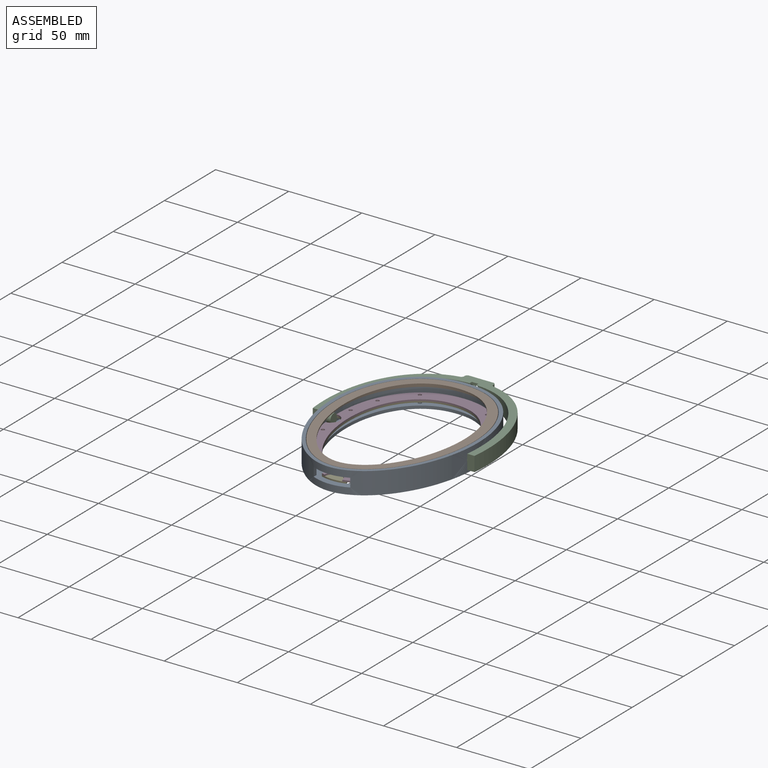
[diagram: assembled view]
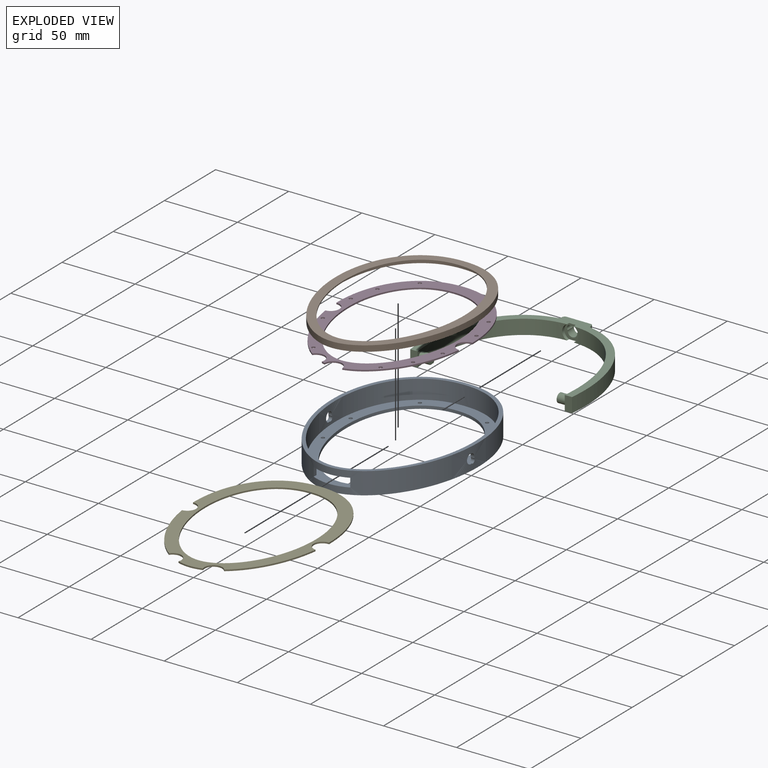
[diagram: exploded view]
GUIDED TOUR — FREECAD ASSEMBLY "jade-ii"

This assembly has 5 components, labeled P0..P4 below (a component is one placed body or linked part; the same part can appear more than once), held together by 0 modeled joints plus 8 derived contact edges. A joint is a constraint between two components; its type names the relative motion it leaves free:
  CONTACT — a derived adjacency edge — the two components touch in the source model (clearance under 2% of the assembly's diagonal); it is measured from the geometry, not a modeled constraint.
Axis/direction vectors are unit vectors and 'through' points are millimeter coordinates, both in the assembly's world frame.

MATES
  1. CONTACT "contact_0_1": P0 <-> P1, contact direction (0.000, 0.000, 1.000) through (23.22, -54.46, 15.00) mm (derived from contact, not a modeled constraint)
  2. CONTACT "contact_0_2": P0 <-> P2, contact direction (0.000, 1.000, 0.000) through (-50.41, 3.01, 7.53) mm (derived from contact, not a modeled constraint)
  3. CONTACT "contact_0_3": P0 <-> P3, contact direction (0.000, 0.000, 1.000) through (11.00, -62.14, 5.25) mm (derived from contact, not a modeled constraint)
  4. CONTACT "contact_0_4": P0 <-> P4, contact direction (0.000, -1.000, 0.000) through (-7.22, -63.47, 4.75) mm (derived from contact, not a modeled constraint)
  5. CONTACT "contact_1_2": P1 <-> P2, contact direction (0.000, 1.000, 0.000) through (44.35, -0.97, 10.77) mm (derived from contact, not a modeled constraint)
  6. CONTACT "contact_2_3": P2 <-> P3, contact direction (0.000, -1.000, 0.000) through (43.45, -4.14, 7.07) mm (derived from contact, not a modeled constraint)
  7. CONTACT "contact_2_4": P2 <-> P4, contact direction (0.000, -1.000, 0.000) through (43.44, -4.06, 6.27) mm (derived from contact, not a modeled constraint)
  8. CONTACT "contact_3_4": P3 <-> P4, contact direction (0.000, 0.000, -1.000) through (46.50, 5.99, 6.00) mm (derived from contact, not a modeled constraint)

ASSEMBLY ORDER
  1. P0 — the base component [order heuristic]
  2. P1 [order heuristic]
  3. P2 [order heuristic]
  4. P3 [order heuristic]
  5. P4 [order heuristic]
Order-tag legend:
  [order heuristic] — this assembly is geometrically interlocked (no collision-free removal order exists), so components are listed in mate-graph order; insertion feasibility is not verified.

Of the 5 components, 5 carry a construction recipe — the FreeCAD feature program (sketches with constraints, then the solid features that consume them) that regenerates the part from scratch, quoted from this document or from the linked companion document it references; the rest are supplied as boundary geometry only. The tour below walks the components in assembly order: each is shown spotlighted twice — in the assembled view, then in the exploded view, where a leader line traces a displaced component back to its assembled socket (components that stay in place when exploded have no leader line; saturated green if recipe-attached, orange if geometry-only; every other component desaturated gray) — followed by its recipe or geometry summary and the mates that hold it.
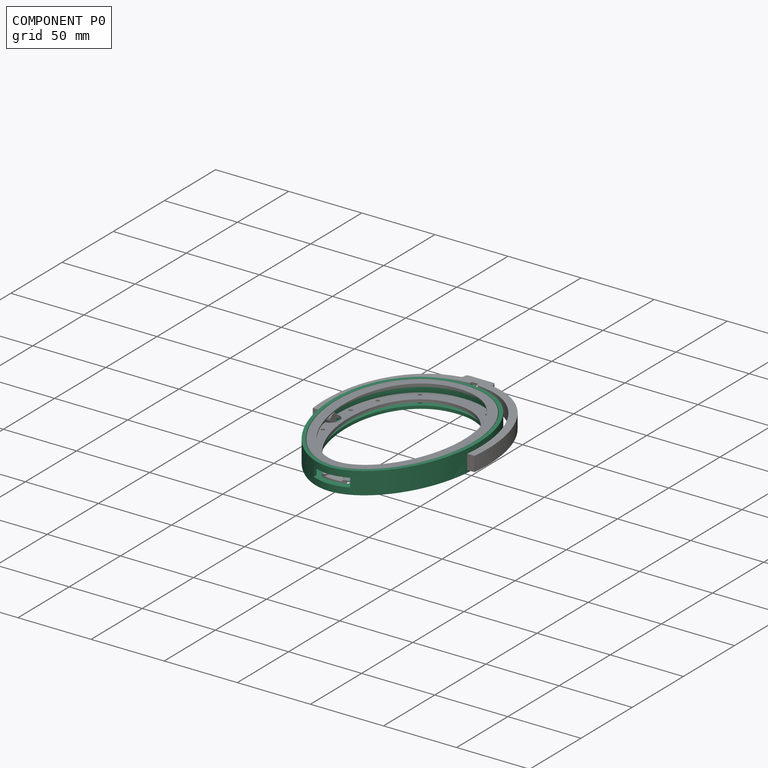
[diagram: component P0 — assembled]
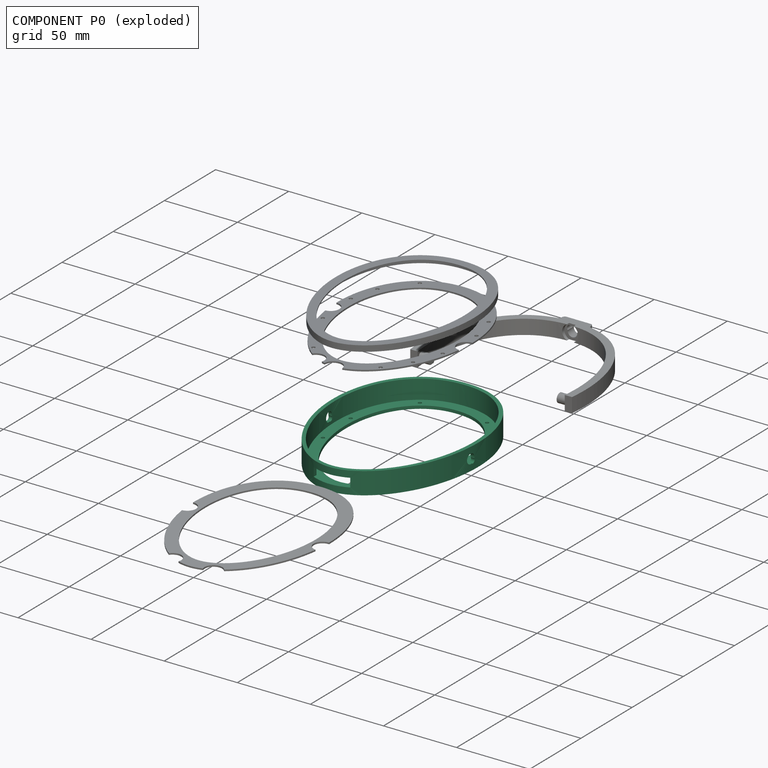
[diagram: component P0 — exploded]
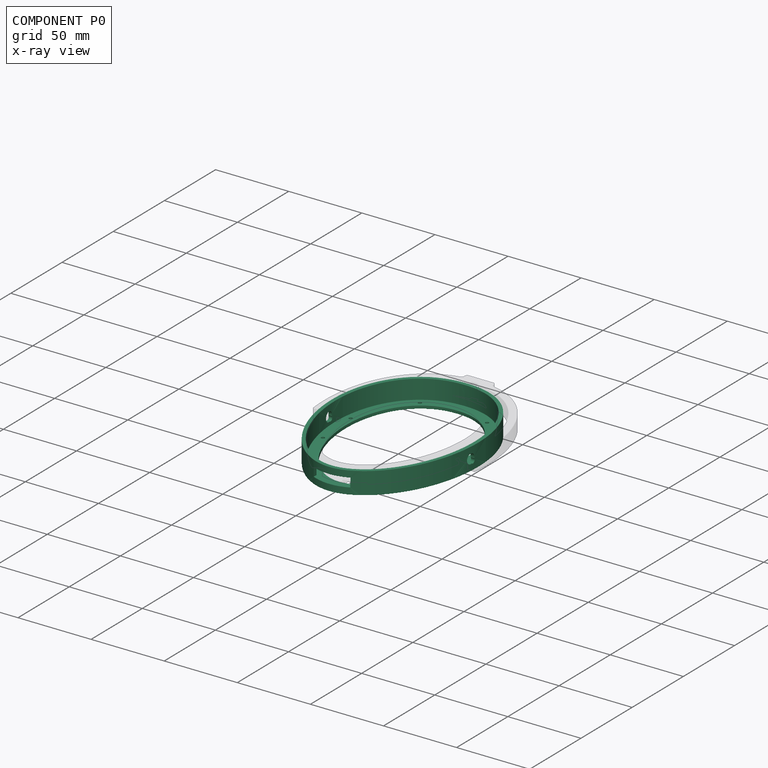
[diagram: component P0 — x-ray view]
COMPONENT P0 — recipe-attached ("Earcup", modeled in this document).
Held by: resting contact with P1 (derived edge); resting contact with P2 (derived edge); resting contact with P3 (derived edge); resting contact with P4 (derived edge).
Construction recipe (the document's own serialized feature program — sketch geometry with constraints, then the solid features built on it; lengths are millimeters unless a unit is written):

FEATURE [Sketcher::SketchObject] Sketch
  ArcFitTolerance = 1e-06
  AttachmentSupport = -> [XY_Plane]
  FullyConstrained = false
  MakeInternals = false
  MapMode = 5
  sketch-geometry (38):
    g0: BSplineCurve PolesCount=11 KnotsCount=3 Degree=5 IsPeriodic=0
    g1: LineSegment [constr] StartX=-2.20587e-05 StartY=-67.5 StartZ=0 EndX=2.20587e-05 EndY=67.5 EndZ=0
    g2: LineSegment [constr] StartX=50 StartY=-1.63397e-05 StartZ=0 EndX=-50 EndY=1.63397e-05 EndZ=0
    g3: GeomPoint [constr] X=-1.48188e-05 Y=-45.3459 Z=0
    g4: GeomPoint [constr] X=1.48188e-05 Y=45.3459 Z=0
    g5: BSplineCurve PolesCount=11 KnotsCount=3 Degree=5 IsPeriodic=0
    g6: LineSegment [constr] StartX=-1.87907e-05 StartY=-57.5 StartZ=0 EndX=1.87907e-05 EndY=57.5 EndZ=0
    g7: LineSegment [constr] StartX=40 StartY=-1.30718e-05 StartZ=0 EndX=-40 EndY=1.30718e-05 EndZ=0
    g8: GeomPoint [constr] X=-1.34988e-05 Y=-41.3068 Z=0
    g9: GeomPoint [constr] X=1.34988e-05 Y=41.3068 Z=0
    g10-g16: Circle [constr] x7 (B-spline internal-alignment scaffolding for g5; pole/knot coordinates omitted)
    g17: GeomPoint [constr] X=-1.87907e-05 Y=-57.5 Z=0
    g18: GeomPoint [constr] X=1.87907e-05 Y=57.5 Z=0
    g19: GeomPoint [constr] X=-1.87907e-05 Y=-57.5 Z=0
    g20-g23: Circle [constr] x4 (B-spline internal-alignment scaffolding for g5; pole/knot coordinates omitted)
    g24-g30: Circle [constr] x7 (B-spline internal-alignment scaffolding for g0; pole/knot coordinates omitted)
    g31: GeomPoint [constr] X=-2.20587e-05 Y=-67.5 Z=0
    g32: GeomPoint [constr] X=2.20587e-05 Y=67.5 Z=0
    g33: GeomPoint [constr] X=-2.20587e-05 Y=-67.5 Z=0
    g34-g37: Circle [constr] x4 (B-spline internal-alignment scaffolding for g0; pole/knot coordinates omitted)
  constraints (12):
    c: Angle(g1) = 1.5708
    c: Angle(g6) = 1.5708
    c: InternalAlignment(g10-g23 -> g5) x14
    c: InternalAlignment(g24-g37 -> g0) x14
    c: DistanceY(g12,g21) = 0
    c: DistanceY(g13,g20) = 0
    c: DistanceY(g-1,g20) = 40.25
    c: DistanceY(g21,g-1) = 17.25
    c: DistanceY(g26,g35) = 0
    c: DistanceY(g27,g34) = 0
    c: DistanceY(g-1,g34) = 47.25
    c: DistanceY(g35,g-1) = 20.25
FEATURE [PartDesign::Pad] Pad
  Direction = (0,0,1)
  Length = 15
  Length2 = 10
  Profile = -> Sketch
  ReferenceAxis = -> Sketch [N_Axis]
  Refine = true
  Suppressed = false
  Type = 0
FEATURE [Sketcher::SketchObject] Sketch001
  ArcFitTolerance = 1e-06
  AttachmentSupport = -> [Pad]
  FullyConstrained = false
  MakeInternals = false
  MapMode = 5
  Placement = pos=(0,0,15) rot=(0,0,1;0rad)
  sketch-geometry (19):
    g0: BSplineCurve PolesCount=11 KnotsCount=3 Degree=5 IsPeriodic=0
    g1: LineSegment [constr] StartX=-2.12417e-05 StartY=-65 StartZ=0 EndX=2.12417e-05 EndY=65 EndZ=0
    g2: LineSegment [constr] StartX=47.5 StartY=-1.55228e-05 StartZ=0 EndX=-47.5 EndY=1.55228e-05 EndZ=0
    g3: GeomPoint [constr] X=-1.45001e-05 Y=-44.3706 Z=0
    g4: GeomPoint [constr] X=1.45001e-05 Y=44.3706 Z=0
    g5-g11: Circle [constr] x7 (B-spline internal-alignment scaffolding for g0; pole/knot coordinates omitted)
    g12: GeomPoint [constr] X=-2.12417e-05 Y=-65 Z=0
    g13: GeomPoint [constr] X=2.12417e-05 Y=65 Z=0
    g14: GeomPoint [constr] X=-2.12417e-05 Y=-65 Z=0
    g15-g18: Circle [constr] x4 (B-spline internal-alignment scaffolding for g0; pole/knot coordinates omitted)
  constraints (6):
    c: Angle(g1) = 1.5708
    c: InternalAlignment(g5-g18 -> g0) x14
    c: DistanceY(g8,g15) = 0
    c: DistanceY(g7,g16) = 0
    c: DistanceY(g16,g-1) = 19.5
    c: DistanceY(g-1,g15) = 45.5
FEATURE [PartDesign::Pocket] Pocket
  BaseFeature = -> Pad
  Direction = (0,0,-1)
  Length = 13
  Length2 = 5
  Profile = -> Sketch001
  ReferenceAxis = -> Sketch001 [N_Axis]
  Refine = true
  Suppressed = false
  Type = 0
FEATURE [Sketcher::SketchObject] Sketch002
  ArcFitTolerance = 1e-06
  AttachmentSupport = -> [Pocket]
  FullyConstrained = true
  MakeInternals = false
  MapMode = 5
  Placement = pos=(0,0,2) rot=(0,0,1;0rad)
  sketch-geometry (8):
    g0: Circle CenterX=-41 CenterY=-15 CenterZ=0 NormalX=0 NormalY=0 NormalZ=1 AngleXU=0 Radius=1.5
    g1: Circle CenterX=41 CenterY=-15 CenterZ=0 NormalX=0 NormalY=0 NormalZ=1 AngleXU=0 Radius=1.5
    g2: Circle CenterX=-23 CenterY=-50 CenterZ=0 NormalX=0 NormalY=0 NormalZ=1 AngleXU=0 Radius=1.5
    g3: Circle CenterX=23 CenterY=-50 CenterZ=0 NormalX=0 NormalY=0 NormalZ=1 AngleXU=0 Radius=1.5
    g4: Circle CenterX=-43 CenterY=15 CenterZ=0 NormalX=0 NormalY=0 NormalZ=1 AngleXU=0 Radius=1.5
    g5: Circle CenterX=43 CenterY=15 CenterZ=0 NormalX=0 NormalY=0 NormalZ=1 AngleXU=0 Radius=1.5
    g6: Circle CenterX=-23 CenterY=54 CenterZ=0 NormalX=0 NormalY=0 NormalZ=1 AngleXU=0 Radius=1.5
    g7: Circle CenterX=23 CenterY=54 CenterZ=0 NormalX=0 NormalY=0 NormalZ=1 AngleXU=0 Radius=1.5
  constraints (24):
    c: Diameter(g0) = 3
    c: Diameter(g1) = 3
    c: Diameter(g2) = 3
    c: Diameter(g3) = 3
    c: Diameter(g4) = 3
    c: Diameter(g5) = 3
    c: Diameter(g6) = 3
    c: Diameter(g7) = 3
    c: DistanceY(g-1,g4) = 15
    c: DistanceY(g0,g-1) = 15
    c: DistanceX(g0,g-1) = 41
    c: DistanceX(g-1,g1) = 41
    c: DistanceY(g0,g1) = 0
    c: DistanceY(g4,g5) = 0
    c: DistanceX(g4,g-1) = 43
    c: DistanceX(g-1,g5) = 43
    c: DistanceY(g3,g2) = 0
    c: DistanceX(g2,g-1) = 23
    c: DistanceY(g2,g-1) = 50
    c: DistanceX(g-1,g3) = 23
    c: DistanceY(g6,g7) = 0
    c: DistanceY(g-1,g6) = 54
    c: DistanceX(g6,g-1) = 23
    c: DistanceX(g-1,g7) = 23
FEATURE [PartDesign::Hole] Hole
  BaseFeature = -> Pocket
  CustomThreadClearance = 0
  Depth = 25
  DepthType = 0
  Diameter = 2.4
  DrillForDepth = false
  DrillPoint = 1
  DrillPointAngle = 118
  HoleCutCountersinkAngle = 90
  HoleCutCustomValues = false
  HoleCutDepth = 0
  HoleCutDiameter = 6.1
  HoleCutType = 0
  ModelThread = false
  Profile = -> Sketch002
  Refine = true
  Suppressed = false
  Tapered = false
  TaperedAngle = 90
  ThreadClass = 0
  ThreadDepth = 25
  ThreadDepthType = 0
  ThreadDirection = 0
  ThreadFit = 0
  ThreadSize = 0
  ThreadType = 0
  Threaded = false
  UseCustomThreadClearance = false
FEATURE [PartDesign::Plane] DatumPlane
  AttachmentOffset = pos=(53,0,0) rot=(0,1,0;1.5708rad)
  AttachmentSupport = -> [Hole]
  Length = 66.4317
  MapMode = 45
  Placement = pos=(53,1.83922,7.5) rot=(0,0.999576,0;1.5708rad)
  ResizeMode = 0
  Width = 151.432
FEATURE [Sketcher::SketchObject] Sketch003
  ArcFitTolerance = 1e-06
  AttachmentSupport = -> [DatumPlane]
  FullyConstrained = true
  MakeInternals = false
  MapMode = 5
  Placement = pos=(53,1.83922,7.5) rot=(0,1,0;1.5708rad)
  sketch-geometry (2):
    g0: Circle CenterX=0 CenterY=-2 CenterZ=0 NormalX=0 NormalY=0 NormalZ=1 AngleXU=0 Radius=3.25
    g1: Circle CenterX=1.75 CenterY=-0.25 CenterZ=0 NormalX=0 NormalY=0 NormalZ=1 AngleXU=0 Radius=1.75
  constraints (6):
    c: Diameter(g0) = 6.5
    c: Diameter(g1) = 3.5
    c: DistanceY(g0,g1) = 1.75
    c: DistanceX(g0,g1) = 1.75
    c: DistanceY(g0,g-1) = 2
    c: DistanceX(g0,g-1) = 0
FEATURE [PartDesign::Pocket] Pocket001
  BaseFeature = -> Hole
  Direction = (-1,5.49295e-07,-1e-16)
  Length = 5
  Length2 = 5
  Profile = -> Sketch003
  ReferenceAxis = -> Sketch003 [N_Axis]
  Refine = true
  Suppressed = false
  Type = 1
FEATURE [Sketcher::SketchObject] Sketch020
  ArcFitTolerance = 1e-06
  AttachmentOffset = pos=(0,0,68) rot=(0,0,1;0rad)
  AttachmentSupport = -> [XZ_Plane]
  FullyConstrained = true
  MakeInternals = false
  MapMode = 5
  Placement = pos=(0,-68,1.51e-14) rot=(1,0,0;1.5708rad)
  sketch-geometry (5):
    g0: LineSegment StartX=-12.5 StartY=4.5 StartZ=0 EndX=12.5 EndY=4.5 EndZ=0
    g1: LineSegment StartX=12.5 StartY=4.5 StartZ=0 EndX=12.5 EndY=10.5 EndZ=0
    g2: LineSegment StartX=12.5 StartY=10.5 StartZ=0 EndX=-12.5 EndY=10.5 EndZ=0
    g3: LineSegment StartX=-12.5 StartY=10.5 StartZ=0 EndX=-12.5 EndY=4.5 EndZ=0
    g4: GeomPoint [constr] X=0 Y=7.5 Z=0
  constraints (13):
    c: Coincident(g0,g1)
    c: Coincident(g1,g2)
    c: Coincident(g2,g3)
    c: Coincident(g3,g0)
    c: Horizontal(g0)
    c: Horizontal(g2)
    c: Vertical(g1)
    c: Vertical(g3)
    c: Symmetric(g2,g0,g4)
    c: Distance(g1,g3) = 25
    c: Distance(g0,g2) = 6
    c: PointOnObject(g4,g-2)
    c: DistanceY(g-1,g4) = 7.5
FEATURE [PartDesign::Pocket] Pocket009
  BaseFeature = -> Pocket001
  Direction = (0,1,-2e-16)
  Length = 10
  Length2 = 5
  Profile = -> Sketch020
  ReferenceAxis = -> Sketch020 [N_Axis]
  Refine = true
  Suppressed = false
  Type = 0
FEATURE [PartDesign::Body] Body  label="Earcup"
  AllowCompound = false
  Group = -> [Sketch,Pad,Sketch001,Pocket,Sketch002,Hole,DatumPlane,Sketch003,Pocket001,Sketch020,Pocket009]
  Origin = -> Origin
  Tip = -> Pocket009
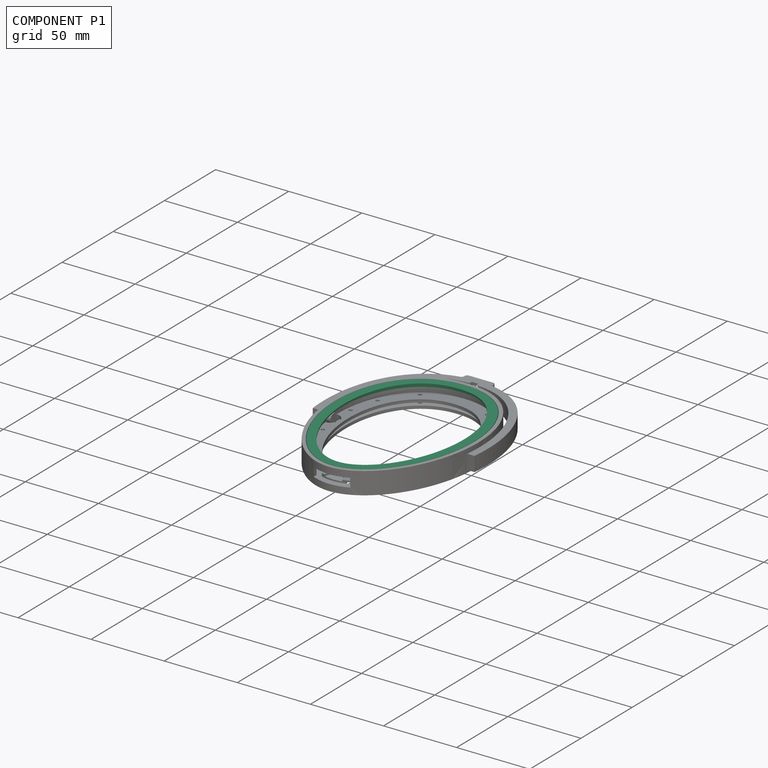
[diagram: component P1 — assembled]
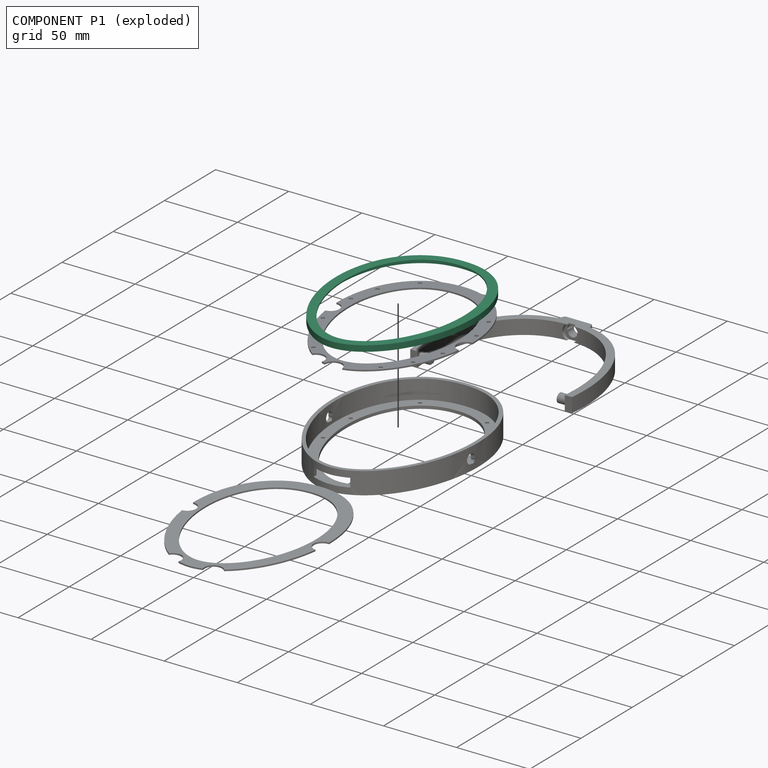
[diagram: component P1 — exploded]
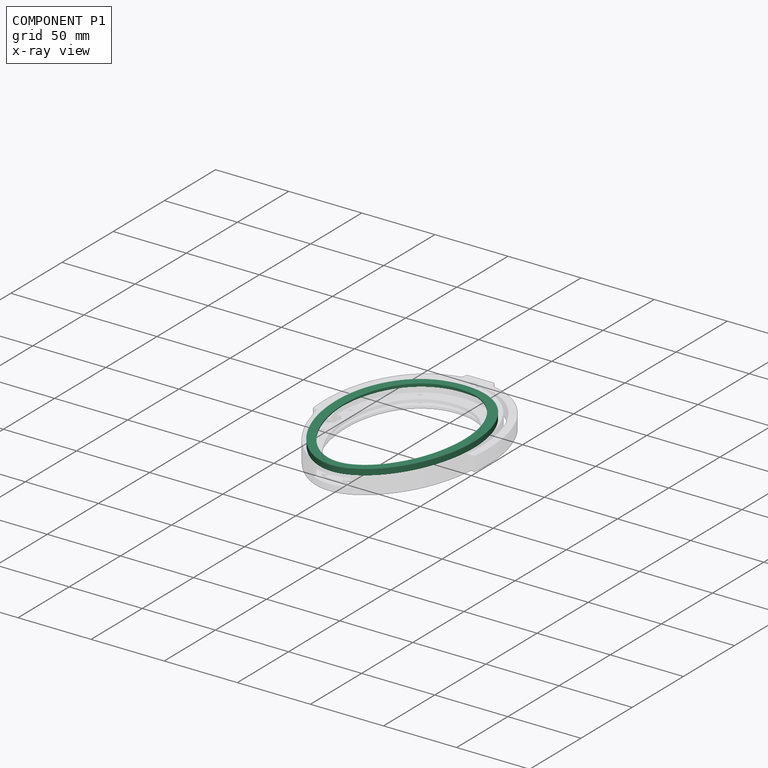
[diagram: component P1 — x-ray view]
COMPONENT P1 — recipe-attached ("Earpad Mount", modeled in this document).
Held by: resting contact with P0 (derived edge); resting contact with P2 (derived edge).
Construction recipe (the document's own serialized feature program — sketch geometry with constraints, then the solid features built on it; lengths are millimeters unless a unit is written):

FEATURE [Sketcher::SketchObject] Sketch008
  ArcFitTolerance = 1e-06
  AttachmentSupport = -> [XY_Plane002]
  FullyConstrained = false
  MakeInternals = false
  MapMode = 5
  sketch-geometry (53):
    g0: LineSegment [constr] StartX=-2.14051e-05 StartY=-65.5 StartZ=0 EndX=2.14051e-05 EndY=65.5 EndZ=0
    g1: LineSegment [constr] StartX=47.5 StartY=-1.55228e-05 StartZ=0 EndX=-47.5 EndY=1.55228e-05 EndZ=0
    g2: GeomPoint [constr] X=-1.47384e-05 Y=-45.0999 Z=0
    g3: GeomPoint [constr] X=1.47384e-05 Y=45.0999 Z=0
    g4: LineSegment [constr] StartX=2.1e-05 StartY=63 StartZ=0 EndX=-2.1e-05 EndY=-63 EndZ=0
    g5: LineSegment [constr] StartX=-45 StartY=1.5e-05 StartZ=0 EndX=45 EndY=-1.5e-05 EndZ=0
    g6: GeomPoint [constr] X=1.46969e-05 Y=44.0908 Z=0
    g7: GeomPoint [constr] X=-1.46969e-05 Y=-44.0908 Z=0
    g8: LineSegment [constr] StartX=-0.00800725 StartY=-58.5 StartZ=0 EndX=-0.00796885 EndY=59 EndZ=0
    g9: GeomPoint [constr] X=-1.37952e-05 Y=-42.2137 Z=0
    g10: GeomPoint [constr] X=1.37952e-05 Y=42.2137 Z=0
    g11: BSplineCurve PolesCount=11 KnotsCount=3 Degree=5 IsPeriodic=0
    g12: LineSegment [constr] StartX=-1.92809e-05 StartY=-59 StartZ=0 EndX=1.92809e-05 EndY=59 EndZ=0
    g13: LineSegment [constr] StartX=41 StartY=-1.33986e-05 StartZ=0 EndX=-41 EndY=1.33986e-05 EndZ=0
    g14: GeomPoint [constr] X=-1.38647e-05 Y=-42.4264 Z=0
    g15: GeomPoint [constr] X=1.38647e-05 Y=42.4264 Z=0
    g16-g22: Circle [constr] x7 (B-spline internal-alignment scaffolding for g11; pole/knot coordinates omitted)
    g23: GeomPoint [constr] X=-1.92809e-05 Y=-59 Z=0
    g24: GeomPoint [constr] X=1.92809e-05 Y=59 Z=0
    g25: GeomPoint [constr] X=-1.92809e-05 Y=-59 Z=0
    g26-g29: Circle [constr] x4 (B-spline internal-alignment scaffolding for g11; pole/knot coordinates omitted)
    g30: LineSegment [constr] StartX=-2.10783e-05 StartY=-64.5 StartZ=0 EndX=2.10783e-05 EndY=64.5 EndZ=0
    g31: LineSegment [constr] StartX=47 StartY=-1.53594e-05 StartZ=0 EndX=-47 EndY=1.53594e-05 EndZ=0
    g32: GeomPoint [constr] X=-1.44355e-05 Y=-44.173 Z=0
    g33: GeomPoint [constr] X=1.44355e-05 Y=44.173 Z=0
    g34: BSplineCurve PolesCount=11 KnotsCount=3 Degree=5 IsPeriodic=0
    g35: LineSegment [constr] StartX=2.1e-05 StartY=64.75 StartZ=0 EndX=-2.1e-05 EndY=-64.75 EndZ=0
    g36: LineSegment [constr] StartX=-47.25 StartY=1.53243e-05 StartZ=0 EndX=47.25 EndY=-1.53243e-05 EndZ=0
    g37: GeomPoint [constr] X=1.43584e-05 Y=44.2719 Z=0
    g38: GeomPoint [constr] X=-1.43584e-05 Y=-44.2719 Z=0
    g39-g45: Circle [constr] x7 (B-spline internal-alignment scaffolding for g34; pole/knot coordinates omitted)
    g46: GeomPoint [constr] X=2.1e-05 Y=64.75 Z=0
    g47: GeomPoint [constr] X=-2.1e-05 Y=-64.75 Z=0
    g48: GeomPoint [constr] X=2.1e-05 Y=64.75 Z=0
    g49-g52: Circle [constr] x4 (B-spline internal-alignment scaffolding for g34; pole/knot coordinates omitted)
  constraints (14):
    c: Angle(g0) = 1.5708
    c: Angle(g8) = 1.5708
    c: Angle(g12) = 1.5708
    c: InternalAlignment(g16-g29 -> g11) x14
    c: DistanceY(g19,g26) = 0
    c: DistanceY(g18,g27) = 0
    c: DistanceY(g27,g-1) = 17.7
    c: DistanceY(g-1,g26) = 41.3
    c: Angle(g30) = 1.5708
    c: InternalAlignment(g39-g52 -> g34) x14
    c: DistanceY(g50,g41) = 0
    c: DistanceY(g49,g42) = 0
    c: DistanceY(g42,g-1) = 19.422
    c: DistanceY(g-1,g41) = 45.318
FEATURE [PartDesign::Pad] Pad003
  Direction = (0,0,1)
  Length = 4
  Length2 = 10
  Profile = -> Sketch008
  ReferenceAxis = -> Sketch008 [N_Axis]
  Refine = true
  Suppressed = false
  Type = 0
FEATURE [Sketcher::SketchObject] Sketch009
  ArcFitTolerance = 1e-06
  AttachmentOffset = pos=(0,0,0) rot=(0,0,1;3.14159rad)
  AttachmentSupport = -> [Pad003]
  FullyConstrained = false
  MakeInternals = false
  MapMode = 5
  Placement = pos=(0,0,0) rot=(0,-1,0;3.14159rad)
  sketch-geometry (19):
    g0: BSplineCurve PolesCount=11 KnotsCount=3 Degree=5 IsPeriodic=0
    g1: LineSegment [constr] StartX=-2.05881e-05 StartY=-63 StartZ=0 EndX=2.05881e-05 EndY=63 EndZ=0
    g2: LineSegment [constr] StartX=45 StartY=-1.47058e-05 StartZ=0 EndX=-45 EndY=1.47058e-05 EndZ=0
    g3: GeomPoint [constr] X=-1.44087e-05 Y=-44.0908 Z=0
    g4: GeomPoint [constr] X=1.44087e-05 Y=44.0908 Z=0
    g5-g11: Circle [constr] x7 (B-spline internal-alignment scaffolding for g0; pole/knot coordinates omitted)
    g12: GeomPoint [constr] X=-2.05881e-05 Y=-63 Z=0
    g13: GeomPoint [constr] X=2.05881e-05 Y=63 Z=0
    g14: GeomPoint [constr] X=-2.05881e-05 Y=-63 Z=0
    g15-g18: Circle [constr] x4 (B-spline internal-alignment scaffolding for g0; pole/knot coordinates omitted)
  constraints (6):
    c: Angle(g1) = 1.5708
    c: InternalAlignment(g5-g18 -> g0) x14
    c: DistanceY(g8,g15) = 0
    c: DistanceY(g7,g16) = 0
    c: DistanceY(g16,g-1) = 18.9
    c: DistanceY(g-1,g15) = 44.1
FEATURE [PartDesign::Pocket] Pocket004
  BaseFeature = -> Pad003
  Direction = (0,0,1)
  Length = 3.2
  Length2 = 5
  Profile = -> Sketch009
  ReferenceAxis = -> Sketch009 [N_Axis]
  Refine = true
  Suppressed = false
  Type = 0
FEATURE [PartDesign::Body] Body002  label="Earpad Mount"
  AllowCompound = false
  Group = -> [Sketch008,Pad003,Sketch009,Pocket004]
  Origin = -> Origin002
  Placement = pos=(0,0,11) rot=(0,0,1;0rad)
  Tip = -> Pocket004
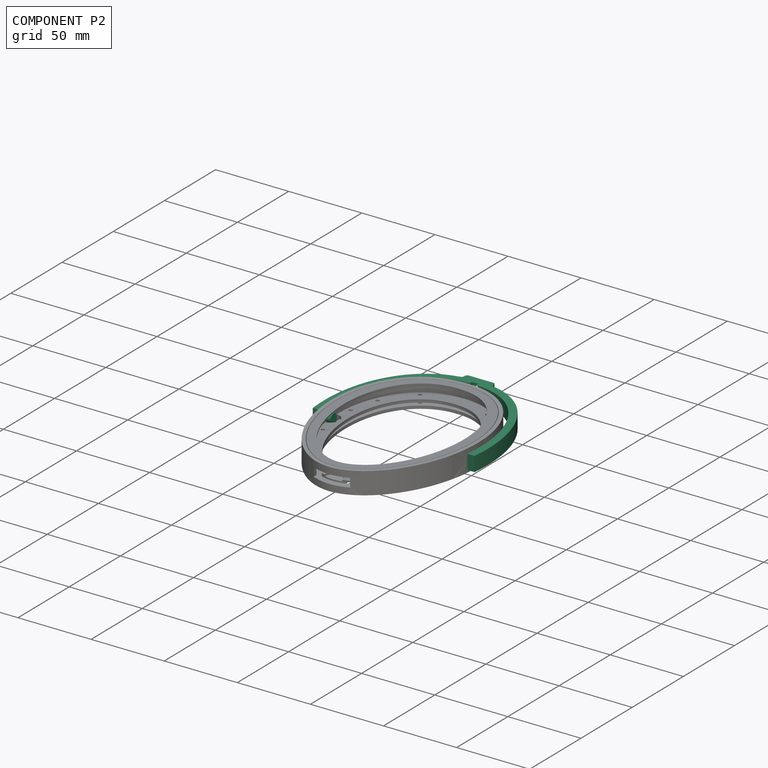
[diagram: component P2 — assembled]
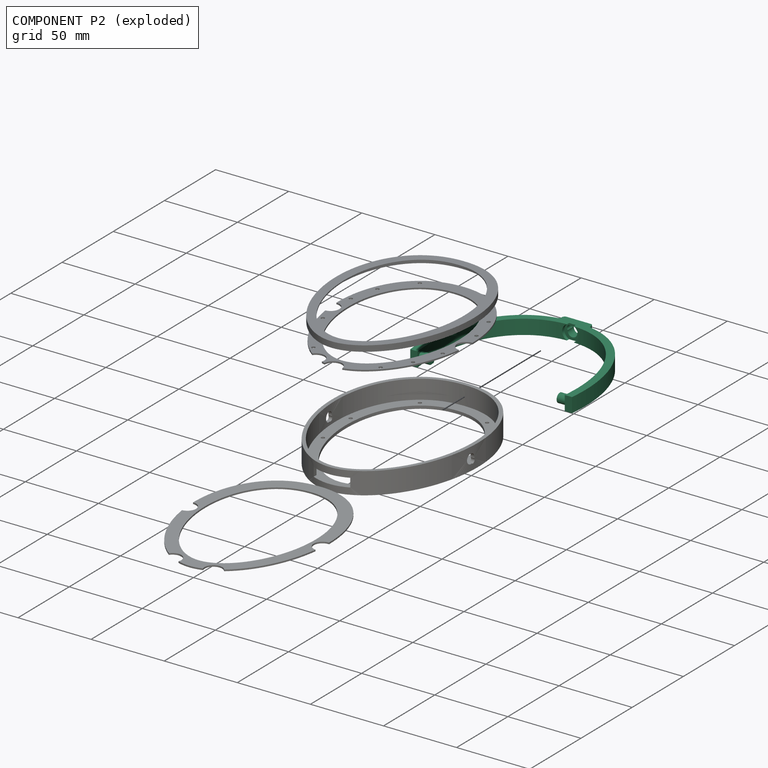
[diagram: component P2 — exploded]
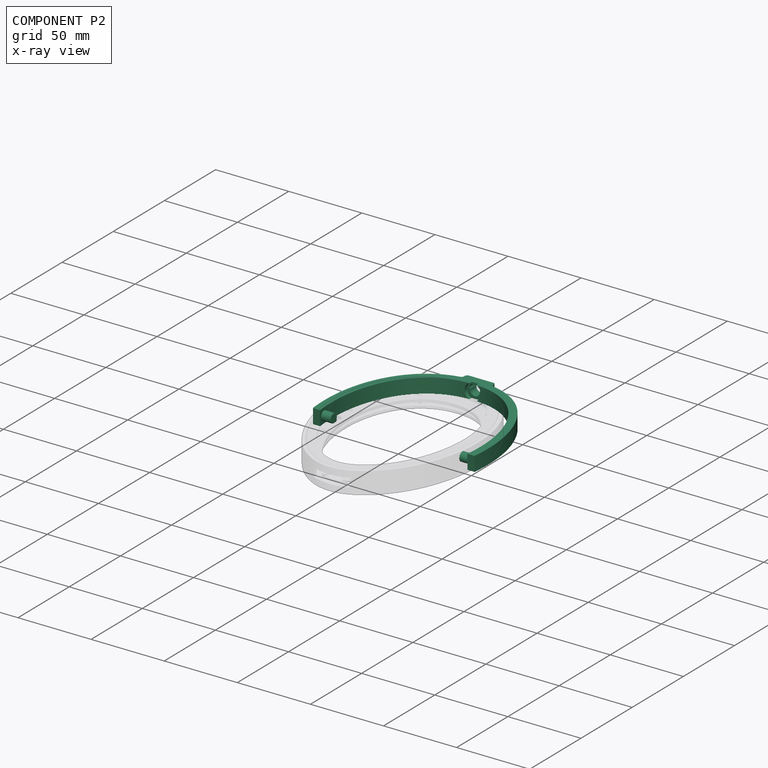
[diagram: component P2 — x-ray view]
COMPONENT P2 — recipe-attached ("Yoke", modeled in this document).
Held by: resting contact with P0 (derived edge); resting contact with P1 (derived edge); resting contact with P3 (derived edge); resting contact with P4 (derived edge).
Construction recipe (the document's own serialized feature program — sketch geometry with constraints, then the solid features built on it; lengths are millimeters unless a unit is written):

FEATURE [Sketcher::SketchObject] Sketch014
  ArcFitTolerance = 1e-06
  AttachmentSupport = -> [XY_Plane004]
  FullyConstrained = false
  MakeInternals = false
  MapMode = 5
  sketch-geometry (44):
    g0: BSplineCurve PolesCount=11 KnotsCount=3 Degree=5 IsPeriodic=0
    g1: LineSegment [constr] StartX=-2.3856e-05 StartY=-73 StartZ=0 EndX=2.3856e-05 EndY=73 EndZ=0
    g2: LineSegment [constr] StartX=51 StartY=-1.66665e-05 StartZ=0 EndX=-51 EndY=1.66665e-05 EndZ=0
    g3: GeomPoint [constr] X=-1.70686e-05 Y=-52.2303 Z=0
    g4: GeomPoint [constr] X=1.70686e-05 Y=52.2303 Z=0
    g5: BSplineCurve PolesCount=11 KnotsCount=3 Degree=5 IsPeriodic=0
    g6: LineSegment [constr] StartX=-2.549e-05 StartY=-78 StartZ=0 EndX=2.549e-05 EndY=78 EndZ=0
    g7: LineSegment [constr] StartX=56 StartY=-1.83005e-05 StartZ=0 EndX=-56 EndY=1.83005e-05 EndZ=0
    g8: GeomPoint [constr] X=-1.77435e-05 Y=-54.2955 Z=0
    g9: GeomPoint [constr] X=1.77435e-05 Y=54.2955 Z=0
    g10: GeomPoint X=-55.312 Y=-4.5 Z=0
    g11: GeomPoint X=-50.3323 Y=-4.5 Z=0
    g12: GeomPoint X=50.3772 Y=-4.5 Z=0
    g13: GeomPoint X=55.3208 Y=-4.5 Z=0
    g14: LineSegment StartX=50.3772 StartY=-4.5 StartZ=0 EndX=55.3208 EndY=-4.5 EndZ=0
    g15: LineSegment StartX=-55.312 StartY=-4.5 StartZ=0 EndX=-50.3323 EndY=-4.5 EndZ=0
    g16-g26: Circle [constr] x11 (B-spline internal-alignment scaffolding for g0; pole/knot coordinates omitted)
    g27: GeomPoint [constr] X=50.3772 Y=-4.5 Z=0
    g28: GeomPoint [constr] X=2.38603e-05 Y=73 Z=0
    g29: GeomPoint [constr] X=-50.3323 Y=-4.5 Z=0
    g30-g40: Circle [constr] x11 (B-spline internal-alignment scaffolding for g5; pole/knot coordinates omitted)
    g41: GeomPoint [constr] X=55.3208 Y=-4.5 Z=0
    g42: GeomPoint [constr] X=2.549e-05 Y=78 Z=0
    g43: GeomPoint [constr] X=-55.312 Y=-4.5 Z=0
  constraints (20):
    c: Angle(g1) = 1.5708
    c: Angle(g6) = 1.5708
    c: PointOnObject(g10,g5)
    c: PointOnObject(g11,g0)
    c: DistanceY(g11,g10) = 0
    c: DistanceY(g11,g-1) = 4.5
    c: PointOnObject(g12,g0)
    c: PointOnObject(g13,g5)
    c: DistanceY(g13,g12) = 0
    c: DistanceY(g12,g-1) = 4.5
    c: Coincident(g14,g12)
    c: Coincident(g14,g13)
    c: Coincident(g15,g10)
    c: Coincident(g15,g11)
    c: PointOnObject(g0,g15)
    c: PointOnObject(g0,g14)
    c: InternalAlignment(g16-g29 -> g0) x14
    c: PointOnObject(g5,g14)
    c: PointOnObject(g5,g15)
    c: InternalAlignment(g30-g43 -> g5) x14
FEATURE [PartDesign::Pad] Pad005
  Direction = (0,0,1)
  Length = 10
  Length2 = 10
  Profile = -> Sketch014
  ReferenceAxis = -> Sketch014 [N_Axis]
  Refine = true
  Suppressed = false
  Type = 0
FEATURE [PartDesign::Plane] DatumPlane002
  AttachmentOffset = pos=(0,-55,0) rot=(1,0,0;1.5708rad)
  AttachmentSupport = -> [Pad005]
  Length = 120.573
  MapMode = 45
  Placement = pos=(55.0012,46.0036,5) rot=(0.577368,0.577341,0.577341;2.09437rad)
  ResizeMode = 0
  Width = 64.561
FEATURE [Sketcher::SketchObject] Sketch015
  ArcFitTolerance = 1e-06
  AttachmentOffset = pos=(0,0,0) rot=(0,0,1;-1.5708rad)
  AttachmentSupport = -> [DatumPlane002]
  FullyConstrained = true
  MakeInternals = false
  MapMode = 5
  Placement = pos=(55.0012,46.0036,5) rot=(-2.3e-05,-1,2.3e-05;4.71239rad)
  sketch-geometry (2):
    g0: Circle CenterX=0 CenterY=-46.2 CenterZ=0 NormalX=0 NormalY=0 NormalZ=1 AngleXU=0 Radius=3.125
    g1: Circle CenterX=1.8 CenterY=-44.4 CenterZ=0 NormalX=0 NormalY=0 NormalZ=1 AngleXU=0 Radius=1.25
  constraints (6):
    c: Diameter(g0) = 6.25
    c: PointOnObject(g0,g-2)
    c: DistanceY(g0,g-1) = 46.2
    c: Diameter(g1) = 2.5
    c: DistanceY(g0,g1) = 1.8
    c: DistanceX(g0,g1) = 1.8
FEATURE [PartDesign::Pad] Pad006
  BaseFeature = -> Pad005
  Direction = (1,-4.57582e-05,0)
  Length = 110
  Length2 = 10
  Profile = -> Sketch015
  ReferenceAxis = -> Sketch015 [N_Axis]
  Refine = true
  Reversed = true
  Suppressed = false
  Type = 0
FEATURE [Sketcher::SketchObject] Sketch016
  ArcFitTolerance = 1e-06
  AttachmentSupport = -> [Pad006]
  FullyConstrained = true
  MakeInternals = false
  MapMode = 5
  Placement = pos=(0,0,10) rot=(0,0,1;0rad)
  sketch-geometry (5):
    g0: LineSegment StartX=-44 StartY=-5.5 StartZ=0 EndX=44 EndY=-5.5 EndZ=0
    g1: LineSegment StartX=44 StartY=-5.5 StartZ=0 EndX=44 EndY=5.5 EndZ=0
    g2: LineSegment StartX=44 StartY=5.5 StartZ=0 EndX=-44 EndY=5.5 EndZ=0
    g3: LineSegment StartX=-44 StartY=5.5 StartZ=0 EndX=-44 EndY=-5.5 EndZ=0
    g4: GeomPoint [constr] X=0 Y=0 Z=0
  constraints (12):
    c: Coincident(g0,g1)
    c: Coincident(g1,g2)
    c: Coincident(g2,g3)
    c: Coincident(g3,g0)
    c: Horizontal(g0)
    c: Horizontal(g2)
    c: Vertical(g1)
    c: Vertical(g3)
    c: Symmetric(g2,g0,g4)
    c: Distance(g1,g3) = 88
    c: Distance(g0,g2) = 11
    c: Coincident(g4,g-1)
FEATURE [PartDesign::Pocket] Pocket006
  BaseFeature = -> Pad006
  Direction = (0,0,-1)
  Length = 5
  Length2 = 5
  Profile = -> Sketch016
  ReferenceAxis = -> Sketch016 [N_Axis]
  Refine = true
  Suppressed = false
  Type = 1
FEATURE [PartDesign::Plane] DatumPlane003
  AttachmentOffset = pos=(30,0,0) rot=(0,1,0;1.5708rad)
  AttachmentSupport = -> [Pocket006]
  Length = 64.9665
  MapMode = 45
  Placement = pos=(0.00260802,76.0062,5) rot=(-0.577341,0.577368,0.577341;2.09437rad)
  ResizeMode = 0
  Width = 126.965
FEATURE [Sketcher::SketchObject] Sketch017
  ArcFitTolerance = 1e-06
  AttachmentOffset = pos=(0,0,0) rot=(0,0,1;-1.5708rad)
  AttachmentSupport = -> [DatumPlane003]
  FullyConstrained = true
  MakeInternals = false
  MapMode = 5
  Placement = pos=(0.00260802,76.0062,5) rot=(1,-2.3e-05,2.3e-05;4.71239rad)
  sketch-geometry (5):
    g0: LineSegment StartX=-10 StartY=-5 StartZ=0 EndX=10 EndY=-5 EndZ=0
    g1: LineSegment StartX=10 StartY=-5 StartZ=0 EndX=10 EndY=5 EndZ=0
    g2: LineSegment StartX=10 StartY=5 StartZ=0 EndX=-10 EndY=5 EndZ=0
    g3: LineSegment StartX=-10 StartY=5 StartZ=0 EndX=-10 EndY=-5 EndZ=0
    g4: GeomPoint [constr] X=0 Y=0 Z=0
  constraints (12):
    c: Coincident(g0,g1)
    c: Coincident(g1,g2)
    c: Coincident(g2,g3)
    c: Coincident(g3,g0)
    c: Horizontal(g0)
    c: Horizontal(g2)
    c: Vertical(g1)
    c: Vertical(g3)
    c: Symmetric(g2,g0,g4)
    c: Distance(g1,g3) = 20
    c: Distance(g0,g2) = 10
    c: Coincident(g4,g-1)
FEATURE [PartDesign::Pad] Pad007
  BaseFeature = -> Pocket006
  Direction = (4.57582e-05,1,1e-16)
  Length = 5
  Length2 = 10
  Profile = -> Sketch017
  ReferenceAxis = -> Sketch017 [N_Axis]
  Refine = true
  Suppressed = false
  Type = 0
FEATURE [Sketcher::SketchObject] Sketch018
  ArcFitTolerance = 1e-06
  AttachmentOffset = pos=(0,10,0) rot=(0,0,1;3.14159rad)
  AttachmentSupport = -> [Pad007]
  FullyConstrained = false
  MakeInternals = false
  MapMode = 5
  Placement = pos=(0.0037067,81.0062,10) rot=(1,-2.3e-05,2.3e-05;4.71239rad)
  sketch-geometry (4):
    g0: ArcOfCircle CenterX=-1.75 CenterY=3.25 CenterZ=0 NormalX=0 NormalY=0 NormalZ=1 AngleXU=0 Radius=2 StartAngle=2.4004 EndAngle=5.21775
    g1: ArcOfCircle CenterX=1.75 CenterY=3.25 CenterZ=0 NormalX=0 NormalY=0 NormalZ=1 AngleXU=0 Radius=2 StartAngle=4.20703 EndAngle=7.02437
    g2: ArcOfCircle CenterX=0 CenterY=5 CenterZ=0 NormalX=0 NormalY=0 NormalZ=1 AngleXU=0 Radius=3.25 StartAngle=6.1599 EndAngle=9.54806
    g3: LineSegment StartX=-0.781754 StartY=1.5 StartZ=0 EndX=0.781754 EndY=1.5 EndZ=0
  constraints (8):
    c: Diameter(g0) = 4
    c: Diameter(g1) = 4
    c: PointOnObject(g1,g2)
    c: Coincident(g2,g0)
    c: PointOnObject(g2,g1)
    c: Horizontal(g3)
    c: Coincident(g0,g3)
    c: Coincident(g1,g3)
FEATURE [PartDesign::Pocket] Pocket007
  BaseFeature = -> Pad007
  Direction = (-4.57582e-05,-1,1e-16)
  Length = 5
  Length2 = 5
  Profile = -> Sketch018
  ReferenceAxis = -> Sketch018 [N_Axis]
  Refine = true
  Suppressed = false
  Type = 1
FEATURE [Sketcher::SketchObject] Sketch019
  ArcFitTolerance = 1e-06
  AttachmentSupport = -> [XZ_Plane004]
  FullyConstrained = true
  MakeInternals = false
  MapMode = 5
  Placement = pos=(0,0,0) rot=(1,0,0;1.5708rad)
  sketch-geometry (1):
    g0: Circle CenterX=0 CenterY=5 CenterZ=0 NormalX=0 NormalY=0 NormalZ=1 AngleXU=0 Radius=5.5
  constraints (3):
    c: Diameter(g0) = 11
    c: PointOnObject(g0,g-2)
    c: DistanceY(g-1,g0) = 5
FEATURE [PartDesign::Pocket] Pocket008
  BaseFeature = -> Pocket007
  Direction = (0,1,-2e-16)
  Length = 75
  Length2 = 5
  Profile = -> Sketch019
  ReferenceAxis = -> Sketch019 [N_Axis]
  Refine = true
  Suppressed = false
  Type = 0
FEATURE [PartDesign::Fillet] Fillet
  Base = -> Pocket008 [Edge36,Edge15,Edge41,Edge58]
  BaseFeature = -> Pocket008
  Radius = 1.75
  Refine = true
  SupportTransform = false
  Suppressed = false
  UseAllEdges = false
FEATURE [PartDesign::Body] Body004  label="Yoke"
  AllowCompound = false
  Group = -> [Sketch014,Pad005,DatumPlane002,Sketch015,Pad006,Sketch016,Pocket006,DatumPlane003,Sketch017,Pad007,Sketch018,Pocket007,Sketch019,Pocket008,Fillet]
  Origin = -> Origin004
  Placement = pos=(0,0,2.5) rot=(0,0,1;0rad)
  Tip = -> Fillet
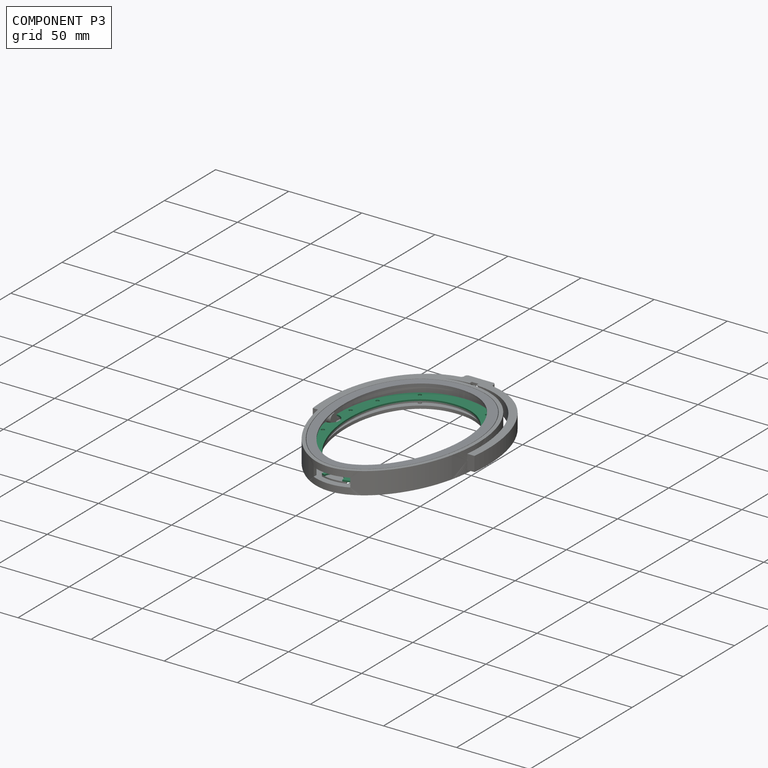
[diagram: component P3 — assembled]
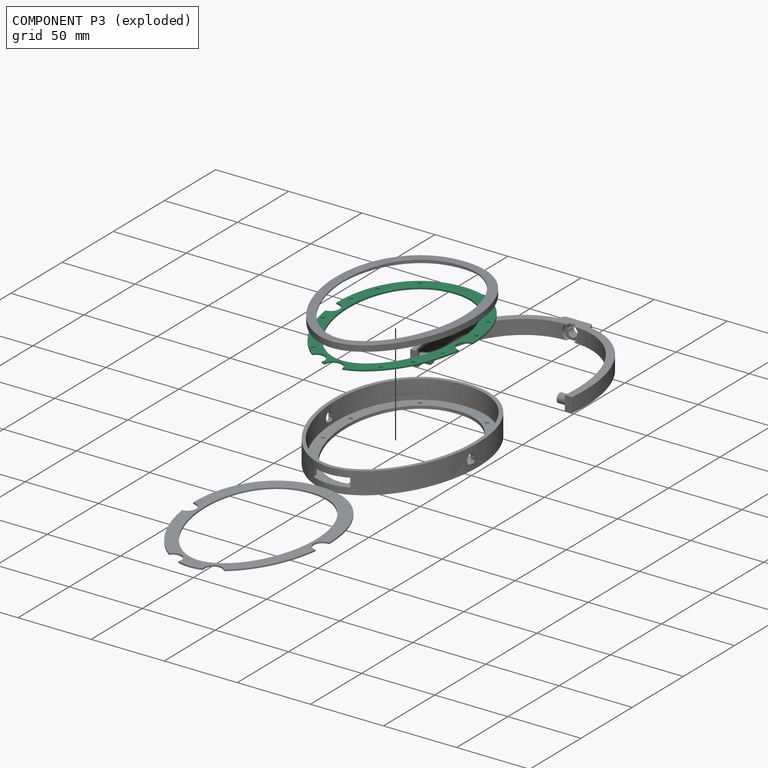
[diagram: component P3 — exploded]
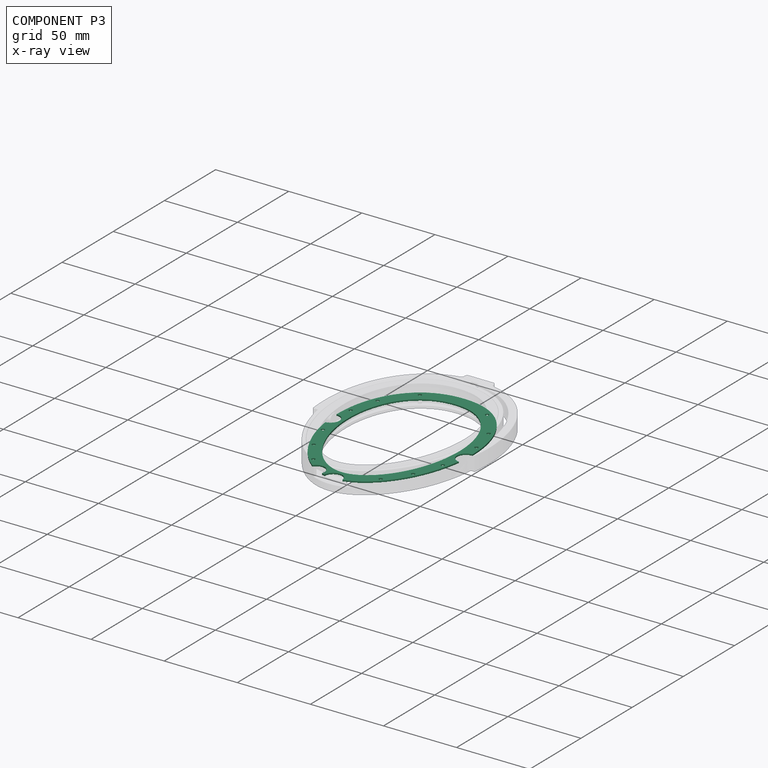
[diagram: component P3 — x-ray view]
COMPONENT P3 — recipe-attached ("LINK - PCB Stator", modeled in this document).
Held by: resting contact with P0 (derived edge); resting contact with P2 (derived edge); resting contact with P4 (derived edge).
Construction recipe (the document's own serialized feature program — sketch geometry with constraints, then the solid features built on it; lengths are millimeters unless a unit is written):

FEATURE [Sketcher::SketchObject] Sketch010
  ArcFitTolerance = 1e-06
  AttachmentSupport = -> [XY_Plane003]
  FullyConstrained = false
  MakeInternals = false
  MapMode = 5
  sketch-geometry (19):
    g0: BSplineCurve PolesCount=11 KnotsCount=3 Degree=5 IsPeriodic=0
    g1: LineSegment [constr] StartX=-2.09149e-05 StartY=-64 StartZ=0 EndX=2.09149e-05 EndY=64 EndZ=0
    g2: LineSegment [constr] StartX=46.5 StartY=-1.5196e-05 StartZ=0 EndX=-46.5 EndY=1.5196e-05 EndZ=0
    g3: GeomPoint [constr] X=-1.43706e-05 Y=-43.9744 Z=0
    g4: GeomPoint [constr] X=1.43706e-05 Y=43.9744 Z=0
    g5-g11: Circle [constr] x7 (B-spline internal-alignment scaffolding for g0; pole/knot coordinates omitted)
    g12: GeomPoint [constr] X=-2.09149e-05 Y=-64 Z=0
    g13: GeomPoint [constr] X=2.09149e-05 Y=64 Z=0
    g14: GeomPoint [constr] X=-2.09149e-05 Y=-64 Z=0
    g15-g18: Circle [constr] x4 (B-spline internal-alignment scaffolding for g0; pole/knot coordinates omitted)
  constraints (6):
    c: Angle(g1) = 1.5708
    c: InternalAlignment(g5-g18 -> g0) x14
    c: DistanceY(g8,g15) = 0
    c: DistanceY(g7,g16) = 0
    c: DistanceY(g16,g-1) = 19.2
    c: DistanceY(g-1,g15) = 44.8
FEATURE [PartDesign::Pad] Pad004
  Direction = (0,0,1)
  Length = 1
  Length2 = 10
  Profile = -> Sketch010
  ReferenceAxis = -> Sketch010 [N_Axis]
  Refine = true
  Suppressed = false
  Type = 0
FEATURE [Sketcher::SketchObject] Sketch011
  ArcFitTolerance = 1e-06
  AttachmentSupport = -> [Pad004]
  FullyConstrained = false
  MakeInternals = false
  MapMode = 5
  Placement = pos=(0,0,1) rot=(0,0,1;0rad)
  sketch-geometry (4):
    g0: Circle CenterX=-46.25 CenterY=0 CenterZ=0 NormalX=0 NormalY=0 NormalZ=1 AngleXU=0 Radius=6
    g1: Circle CenterX=46.25 CenterY=0 CenterZ=0 NormalX=0 NormalY=0 NormalZ=1 AngleXU=0 Radius=6
    g2: Circle CenterX=0 CenterY=-63.5 CenterZ=0 NormalX=0 NormalY=0 NormalZ=1 AngleXU=0 Radius=6
    g3: Circle CenterX=14.0641 CenterY=-60.5 CenterZ=0 NormalX=0 NormalY=0 NormalZ=1 AngleXU=0 Radius=6
  constraints (11):
    c: Diameter(g0) = 12
    c: PointOnObject(g0,g-1)
    c: Diameter(g1) = 12
    c: PointOnObject(g1,g-1)
    c: DistanceX(g-1,g1) = 46.25
    c: DistanceX(g0,g-1) = 46.25
    c: Diameter(g2) = 12
    c: Diameter(g3) = 12
    c: DistanceX(g-1,g2) = 0
    c: DistanceY(g2,g-1) = 63.5
    c: DistanceY(g3,g-1) = 60.5
FEATURE [PartDesign::Pocket] Pocket005
  BaseFeature = -> Pad004
  Direction = (0,0,-1)
  Length = 5
  Length2 = 5
  Profile = -> Sketch011
  ReferenceAxis = -> Sketch011 [N_Axis]
  Refine = true
  Suppressed = false
  Type = 0
FEATURE [Sketcher::SketchObject] Sketch012  label="Stator Holes"
  ArcFitTolerance = 1e-06
  AttachmentSupport = -> [Pocket005]
  FullyConstrained = true
  MakeInternals = false
  MapMode = 5
  Placement = pos=(0,0,1) rot=(0,0,1;0rad)
  sketch-geometry (12):
    g0: Circle CenterX=-41 CenterY=-15 CenterZ=0 NormalX=0 NormalY=0 NormalZ=1 AngleXU=0 Radius=1.5
    g1: Circle CenterX=41 CenterY=-15 CenterZ=0 NormalX=0 NormalY=0 NormalZ=1 AngleXU=0 Radius=1.5
    g2: Circle CenterX=-23 CenterY=-50 CenterZ=0 NormalX=0 NormalY=0 NormalZ=1 AngleXU=0 Radius=1.5
    g3: Circle CenterX=23 CenterY=-50 CenterZ=0 NormalX=0 NormalY=0 NormalZ=1 AngleXU=0 Radius=1.5
    g4: Circle CenterX=-43 CenterY=15 CenterZ=0 NormalX=0 NormalY=0 NormalZ=1 AngleXU=0 Radius=1.5
    g5: Circle CenterX=43 CenterY=15 CenterZ=0 NormalX=0 NormalY=0 NormalZ=1 AngleXU=0 Radius=1.5
    g6: Circle CenterX=-23 CenterY=54 CenterZ=0 NormalX=0 NormalY=0 NormalZ=1 AngleXU=0 Radius=1.5
    g7: Circle CenterX=23 CenterY=54 CenterZ=0 NormalX=0 NormalY=0 NormalZ=1 AngleXU=0 Radius=1.5
    g8: Circle CenterX=-34 CenterY=-34 CenterZ=0 NormalX=0 NormalY=0 NormalZ=1 AngleXU=0 Radius=1.5
    g9: Circle CenterX=34 CenterY=-34 CenterZ=0 NormalX=0 NormalY=0 NormalZ=1 AngleXU=0 Radius=1.5
    g10: Circle CenterX=-38 CenterY=34 CenterZ=0 NormalX=0 NormalY=0 NormalZ=1 AngleXU=0 Radius=1.5
    g11: Circle CenterX=38 CenterY=34 CenterZ=0 NormalX=0 NormalY=0 NormalZ=1 AngleXU=0 Radius=1.5
  constraints (36):
    c: Diameter(g0) = 3
    c: Diameter(g1) = 3
    c: Diameter(g2) = 3
    c: Diameter(g3) = 3
    c: Diameter(g4) = 3
    c: Diameter(g5) = 3
    c: Diameter(g6) = 3
    c: Diameter(g7) = 3
    c: DistanceY(g-1,g4) = 15
    c: DistanceY(g0,g-1) = 15
    c: DistanceX(g0,g-1) = 41
    c: DistanceX(g-1,g1) = 41
    c: DistanceY(g0,g1) = 0
    c: DistanceY(g4,g5) = 0
    c: DistanceX(g4,g-1) = 43
    c: DistanceX(g-1,g5) = 43
    c: DistanceY(g3,g2) = 0
    c: DistanceX(g2,g-1) = 23
    c: DistanceY(g2,g-1) = 50
    c: DistanceX(g-1,g3) = 23
    c: DistanceY(g6,g7) = 0
    c: DistanceY(g-1,g6) = 54
    c: DistanceX(g6,g-1) = 23
    c: DistanceX(g-1,g7) = 23
    c: Diameter(g8) = 3
    c: Diameter(g9) = 3
    c: Diameter(g10) = 3
    c: Diameter(g11) = 3
    c: DistanceY(g11,g10) = 0
    c: DistanceY(g-1,g10) = 34
    c: DistanceX(g10,g-1) = 38
    c: DistanceX(g-1,g11) = 38
    c: DistanceY(g8,g-1) = 34
    c: DistanceY(g8,g9) = 0
    c: DistanceX(g8,g-1) = 34
    c: DistanceX(g-1,g9) = 34
FEATURE [PartDesign::Hole] Hole001
  BaseFeature = -> Pocket005
  CustomThreadClearance = 0
  Depth = 25
  DepthType = 0
  Diameter = 2.4
  DrillForDepth = false
  DrillPoint = 1
  DrillPointAngle = 118
  HoleCutCountersinkAngle = 90
  HoleCutCustomValues = false
  HoleCutDepth = 0
  HoleCutDiameter = 6.1
  HoleCutType = 0
  ModelThread = false
  Profile = -> Sketch012
  Refine = true
  Suppressed = false
  Tapered = false
  TaperedAngle = 90
  ThreadClass = 0
  ThreadDepth = 25
  ThreadDepthType = 0
  ThreadDirection = 0
  ThreadFit = 0
  ThreadSize = 6
  ThreadType = 1
  Threaded = false
  UseCustomThreadClearance = false
FEATURE [Sketcher::SketchObject] Sketch013  label="Copper Outline"
  ArcFitTolerance = 1e-06
  AttachmentSupport = -> [Hole001]
  FullyConstrained = false
  MakeInternals = false
  MapMode = 5
  Placement = pos=(0,0,1) rot=(0,0,1;0rad)
  sketch-geometry (19):
    g0: BSplineCurve PolesCount=11 KnotsCount=3 Degree=5 IsPeriodic=0
    g1: LineSegment [constr] StartX=-1.79737e-05 StartY=-55 StartZ=0 EndX=1.79737e-05 EndY=55 EndZ=0
    g2: LineSegment [constr] StartX=38 StartY=-1.24182e-05 StartZ=0 EndX=-38 EndY=1.24182e-05 EndZ=0
    g3: GeomPoint [constr] X=-1.2994e-05 Y=-39.7618 Z=0
    g4: GeomPoint [constr] X=1.2994e-05 Y=39.7618 Z=0
    g5-g11: Circle [constr] x7 (B-spline internal-alignment scaffolding for g0; pole/knot coordinates omitted)
    g12: GeomPoint [constr] X=-1.79737e-05 Y=-55 Z=0
    g13: GeomPoint [constr] X=1.79737e-05 Y=55 Z=0
    g14: GeomPoint [constr] X=-1.79737e-05 Y=-55 Z=0
    g15-g18: Circle [constr] x4 (B-spline internal-alignment scaffolding for g0; pole/knot coordinates omitted)
  constraints (6):
    c: Angle(g1) = 1.5708
    c: InternalAlignment(g5-g18 -> g0) x14
    c: DistanceY(g8,g15) = 0
    c: DistanceY(g7,g16) = 0
    c: DistanceY(g16,g-1) = 16.5
    c: DistanceY(g-1,g15) = 38.5
FEATURE [PartDesign::Pocket] Pocket010
  BaseFeature = -> Hole001
  Direction = (0,0,-1)
  Length = 5
  Length2 = 5
  Profile = -> Sketch013
  ReferenceAxis = -> Sketch013 [N_Axis]
  Refine = true
  Suppressed = false
  Type = 1
FEATURE [PartDesign::Body] Body003  label="PCB Stator"
  AllowCompound = false
  Group = -> [Sketch010,Pad004,Sketch011,Pocket005,Sketch012,Hole001,Sketch013,Pocket010]
  Origin = -> Origin003
  Placement = pos=(0,0,3) rot=(0,0,1;0rad)
  Tip = -> Pocket010
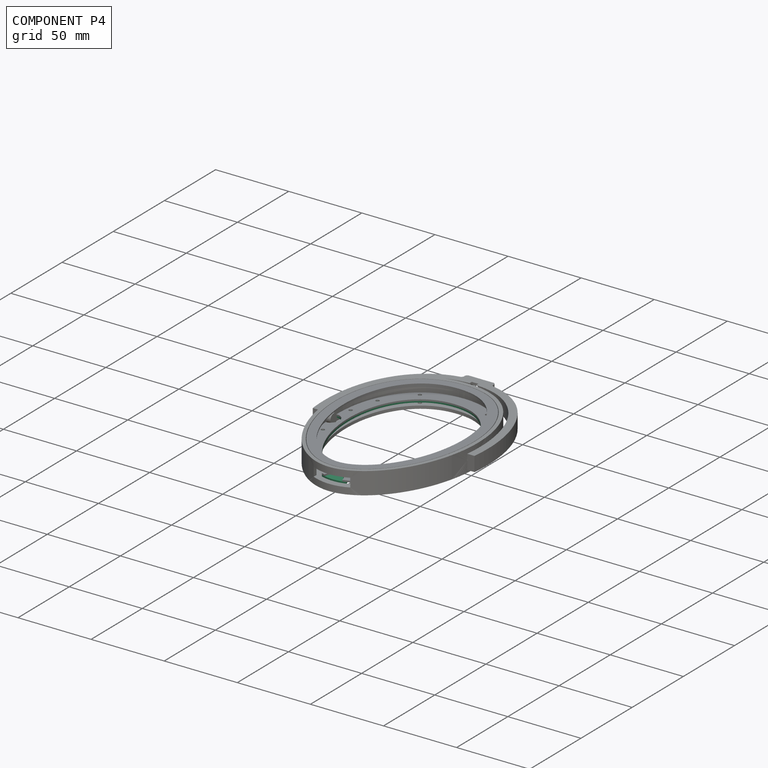
[diagram: component P4 — assembled]
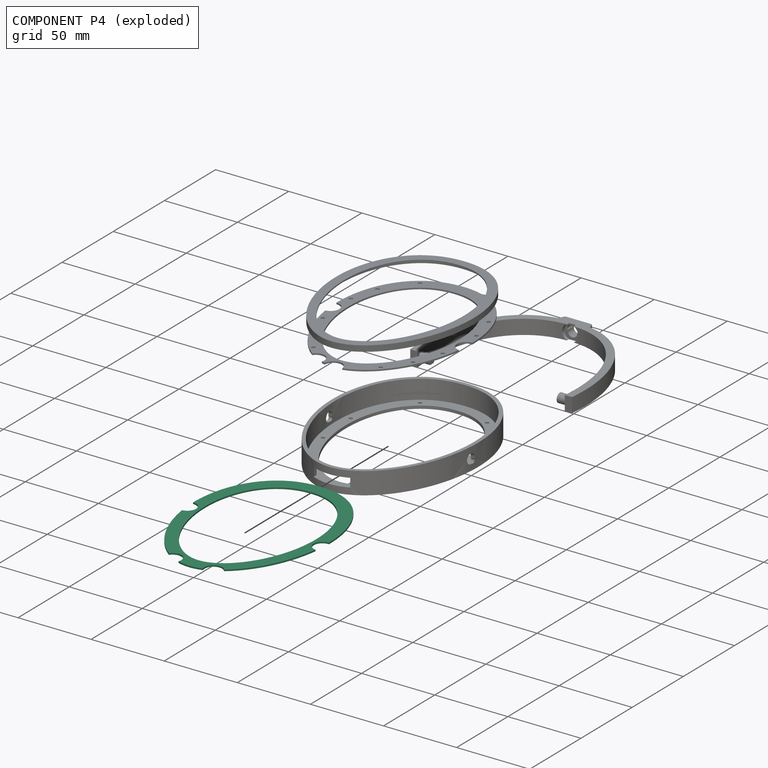
[diagram: component P4 — exploded]
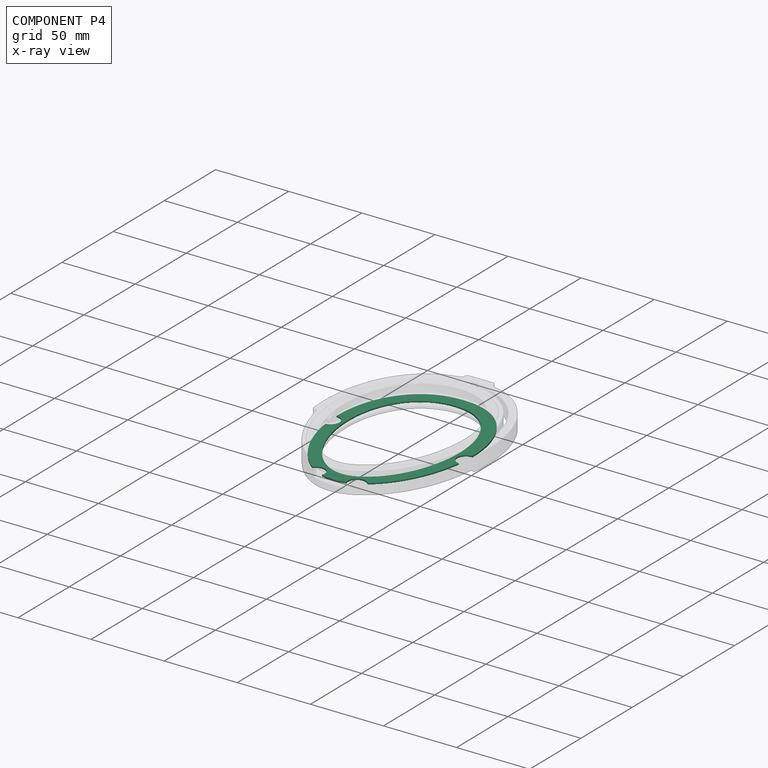
[diagram: component P4 — x-ray view]
COMPONENT P4 — recipe-attached ("LINK - PCB Spacer", modeled in this document).
Held by: resting contact with P0 (derived edge); resting contact with P2 (derived edge); resting contact with P3 (derived edge).
Construction recipe (the document's own serialized feature program — sketch geometry with constraints, then the solid features built on it; lengths are millimeters unless a unit is written):

FEATURE [Sketcher::SketchObject] Sketch021
  ArcFitTolerance = 1e-06
  AttachmentSupport = -> [XY_Plane005]
  FullyConstrained = false
  MakeInternals = false
  MapMode = 5
  sketch-geometry (19):
    g0: BSplineCurve PolesCount=11 KnotsCount=3 Degree=5 IsPeriodic=0
    g1: LineSegment [constr] StartX=-2.09149e-05 StartY=-64 StartZ=0 EndX=2.09149e-05 EndY=64 EndZ=0
    g2: LineSegment [constr] StartX=46.5 StartY=-1.5196e-05 StartZ=0 EndX=-46.5 EndY=1.5196e-05 EndZ=0
    g3: GeomPoint [constr] X=-1.43706e-05 Y=-43.9744 Z=0
    g4: GeomPoint [constr] X=1.43706e-05 Y=43.9744 Z=0
    g5-g11: Circle [constr] x7 (B-spline internal-alignment scaffolding for g0; pole/knot coordinates omitted)
    g12: GeomPoint [constr] X=-2.09149e-05 Y=-64 Z=0
    g13: GeomPoint [constr] X=2.09149e-05 Y=64 Z=0
    g14: GeomPoint [constr] X=-2.09149e-05 Y=-64 Z=0
    g15-g18: Circle [constr] x4 (B-spline internal-alignment scaffolding for g0; pole/knot coordinates omitted)
  constraints (6):
    c: Angle(g1) = 1.5708
    c: InternalAlignment(g5-g18 -> g0) x14
    c: DistanceY(g8,g15) = 0
    c: DistanceY(g7,g16) = 0
    c: DistanceY(g16,g-1) = 19.2
    c: DistanceY(g-1,g15) = 44.8
FEATURE [PartDesign::Pad] Pad008
  Direction = (0,0,1)
  Length = 1
  Length2 = 10
  Profile = -> Sketch021
  ReferenceAxis = -> Sketch021 [N_Axis]
  Refine = true
  Suppressed = false
  Type = 0
FEATURE [Sketcher::SketchObject] Sketch022
  ArcFitTolerance = 1e-06
  AttachmentSupport = -> [Pad008]
  FullyConstrained = true
  MakeInternals = false
  MapMode = 5
  Placement = pos=(0,0,1) rot=(0,0,1;0rad)
  sketch-geometry (4):
    g0: Circle CenterX=-46.25 CenterY=0 CenterZ=0 NormalX=0 NormalY=0 NormalZ=1 AngleXU=0 Radius=6
    g1: Circle CenterX=46.25 CenterY=0 CenterZ=0 NormalX=0 NormalY=0 NormalZ=1 AngleXU=0 Radius=6
    g2: Circle CenterX=14 CenterY=-60.5 CenterZ=0 NormalX=0 NormalY=0 NormalZ=1 AngleXU=0 Radius=6
    g3: Circle CenterX=-14 CenterY=-60.5 CenterZ=0 NormalX=0 NormalY=0 NormalZ=1 AngleXU=0 Radius=6
  constraints (12):
    c: Diameter(g0) = 12
    c: PointOnObject(g0,g-1)
    c: Diameter(g1) = 12
    c: PointOnObject(g1,g-1)
    c: DistanceX(g-1,g1) = 46.25
    c: DistanceX(g0,g-1) = 46.25
    c: Diameter(g2) = 12
    c: DistanceY(g2,g-1) = 60.5
    c: Diameter(g3) = 12
    c: DistanceY(g3,g-1) = 60.5
    c: DistanceX(g-1,g2) = 14
    c: DistanceX(g3,g-1) = 14
FEATURE [PartDesign::Pocket] Pocket011
  BaseFeature = -> Pad008
  Direction = (0,0,-1)
  Length = 5
  Length2 = 5
  Profile = -> Sketch022
  ReferenceAxis = -> Sketch022 [N_Axis]
  Refine = true
  Suppressed = false
  Type = 0
FEATURE [Sketcher::SketchObject] Sketch024  label="Copper Outline001"
  ArcFitTolerance = 1e-06
  FullyConstrained = false
  MakeInternals = false
  MapMode = 5
  Placement = pos=(0,0,1) rot=(0,0,1;0rad)
  sketch-geometry (19):
    g0: BSplineCurve PolesCount=11 KnotsCount=3 Degree=5 IsPeriodic=0
    g1: LineSegment [constr] StartX=-1.79737e-05 StartY=-55 StartZ=0 EndX=1.79737e-05 EndY=55 EndZ=0
    g2: LineSegment [constr] StartX=38 StartY=-1.24182e-05 StartZ=0 EndX=-38 EndY=1.24182e-05 EndZ=0
    g3: GeomPoint [constr] X=-1.2994e-05 Y=-39.7618 Z=0
    g4: GeomPoint [constr] X=1.2994e-05 Y=39.7618 Z=0
    g5-g11: Circle [constr] x7 (B-spline internal-alignment scaffolding for g0; pole/knot coordinates omitted)
    g12: GeomPoint [constr] X=-1.79737e-05 Y=-55 Z=0
    g13: GeomPoint [constr] X=1.79737e-05 Y=55 Z=0
    g14: GeomPoint [constr] X=-1.79737e-05 Y=-55 Z=0
    g15-g18: Circle [constr] x4 (B-spline internal-alignment scaffolding for g0; pole/knot coordinates omitted)
  constraints (6):
    c: Angle(g1) = 1.5708
    c: InternalAlignment(g5-g18 -> g0) x14
    c: DistanceY(g8,g15) = 0
    c: DistanceY(g7,g16) = 0
    c: DistanceY(g16,g-1) = 16.5
    c: DistanceY(g-1,g15) = 38.5
FEATURE [PartDesign::Pocket] Pocket012
  BaseFeature = -> Pocket011
  Direction = (0,0,-1)
  Length = 5
  Length2 = 5
  Profile = -> Sketch024
  ReferenceAxis = -> Sketch024 [N_Axis]
  Refine = true
  Suppressed = false
  Type = 1
FEATURE [Sketcher::SketchObject] Sketch025  label="Stator Holes002"
  ArcFitTolerance = 1e-06
  AttachmentSupport = -> [Pocket011]
  FullyConstrained = true
  MakeInternals = false
  MapMode = 5
  Placement = pos=(0,0,1) rot=(0,0,1;0rad)
  sketch-geometry (12):
    g0: Circle CenterX=-41 CenterY=-15 CenterZ=0 NormalX=0 NormalY=0 NormalZ=1 AngleXU=0 Radius=1.5
    g1: Circle CenterX=41 CenterY=-15 CenterZ=0 NormalX=0 NormalY=0 NormalZ=1 AngleXU=0 Radius=1.5
    g2: Circle CenterX=-23 CenterY=-50 CenterZ=0 NormalX=0 NormalY=0 NormalZ=1 AngleXU=0 Radius=1.5
    g3: Circle CenterX=23 CenterY=-50 CenterZ=0 NormalX=0 NormalY=0 NormalZ=1 AngleXU=0 Radius=1.5
    g4: Circle CenterX=-43 CenterY=15 CenterZ=0 NormalX=0 NormalY=0 NormalZ=1 AngleXU=0 Radius=1.5
    g5: Circle CenterX=43 CenterY=15 CenterZ=0 NormalX=0 NormalY=0 NormalZ=1 AngleXU=0 Radius=1.5
    g6: Circle CenterX=-23 CenterY=54 CenterZ=0 NormalX=0 NormalY=0 NormalZ=1 AngleXU=0 Radius=1.5
    g7: Circle CenterX=23 CenterY=54 CenterZ=0 NormalX=0 NormalY=0 NormalZ=1 AngleXU=0 Radius=1.5
    g8: Circle CenterX=-34 CenterY=-34 CenterZ=0 NormalX=0 NormalY=0 NormalZ=1 AngleXU=0 Radius=1.5
    g9: Circle CenterX=34 CenterY=-34 CenterZ=0 NormalX=0 NormalY=0 NormalZ=1 AngleXU=0 Radius=1.5
    g10: Circle CenterX=-38 CenterY=34 CenterZ=0 NormalX=0 NormalY=0 NormalZ=1 AngleXU=0 Radius=1.5
    g11: Circle CenterX=38 CenterY=34 CenterZ=0 NormalX=0 NormalY=0 NormalZ=1 AngleXU=0 Radius=1.5
  constraints (36):
    c: Diameter(g0) = 3
    c: Diameter(g1) = 3
    c: Diameter(g2) = 3
    c: Diameter(g3) = 3
    c: Diameter(g4) = 3
    c: Diameter(g5) = 3
    c: Diameter(g6) = 3
    c: Diameter(g7) = 3
    c: DistanceY(g-1,g4) = 15
    c: DistanceY(g0,g-1) = 15
    c: DistanceX(g0,g-1) = 41
    c: DistanceX(g-1,g1) = 41
    c: DistanceY(g0,g1) = 0
    c: DistanceY(g4,g5) = 0
    c: DistanceX(g4,g-1) = 43
    c: DistanceX(g-1,g5) = 43
    c: DistanceY(g3,g2) = 0
    c: DistanceX(g2,g-1) = 23
    c: DistanceY(g2,g-1) = 50
    c: DistanceX(g-1,g3) = 23
    c: DistanceY(g6,g7) = 0
    c: DistanceY(g-1,g6) = 54
    c: DistanceX(g6,g-1) = 23
    c: DistanceX(g-1,g7) = 23
    c: Diameter(g8) = 3
    c: Diameter(g9) = 3
    c: Diameter(g10) = 3
    c: Diameter(g11) = 3
    c: DistanceY(g11,g10) = 0
    c: DistanceY(g-1,g10) = 34
    c: DistanceX(g10,g-1) = 38
    c: DistanceX(g-1,g11) = 38
    c: DistanceY(g8,g-1) = 34
    c: DistanceY(g8,g9) = 0
    c: DistanceX(g8,g-1) = 34
    c: DistanceX(g-1,g9) = 34
FEATURE [PartDesign::Body] Body005  label="PCB Spacer"
  AllowCompound = false
  Group = -> [Sketch021,Pad008,Sketch022,Pocket011,Sketch024,Pocket012,Sketch025]
  Origin = -> Origin005
  Placement = pos=(0,0,4) rot=(0,0,1;0rad)
  Tip = -> Pocket012
PROVENANCE & LICENSES
Assembly and component geometry: a FreeCAD (.FCStd) document from a public repository crawl; components, placements and joints were extracted with FreeCAD and each solid tessellated.
Construction recipes: the document's own serialized feature recipes (and, for linked parts, the recipes of companion documents from the same project).
License: gpl-2.0.
Joints: native FreeCAD joints and A2plus constraints are mapped to standard mate types; edges marked 'derived from contact' connect touching components and are measured from the geometry, not modeled.
Verification: 5 of this assembly's 5 components carry a construction recipe (5 from this document itself); the rest are geometry-only. Every component's tessellation passed the extraction mesh gates (mesh-volume checksum against the B-rep where available, bounding-box inflation <= 2%).
Renders: orthographic iso camera (az 35 / el 25); the floor grid conveys scale (grid pitch printed in each image; no ruler). In the exploded view each component is displaced by its stored offset vector: the offsets alone carry the explosion direction (mate normal/axis signs are not orientation cues and do not encode it), and separation distances are assigned per mate-chain, not proportionally to assembly-order depth.
